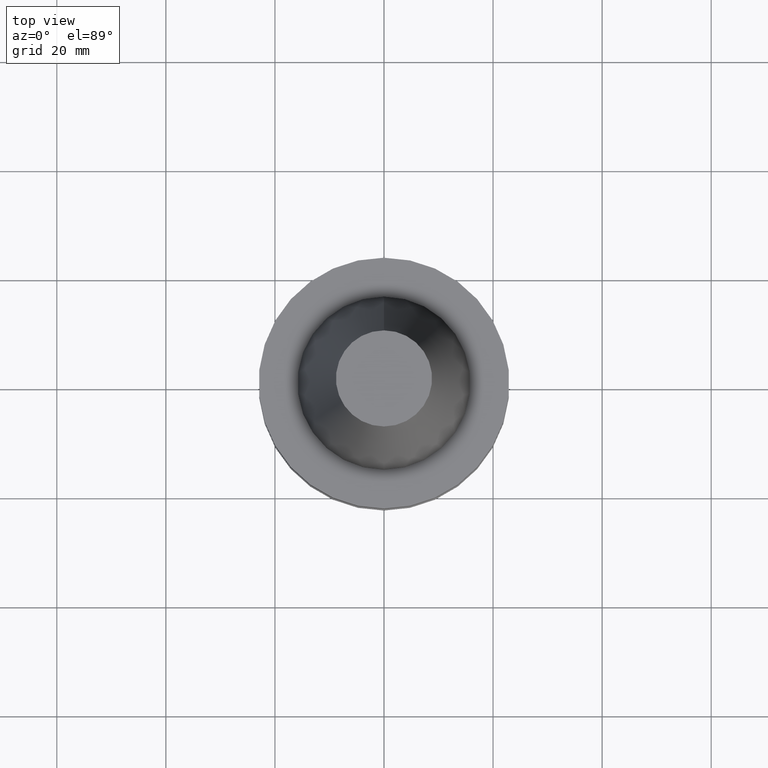
[diagram: clean part render]
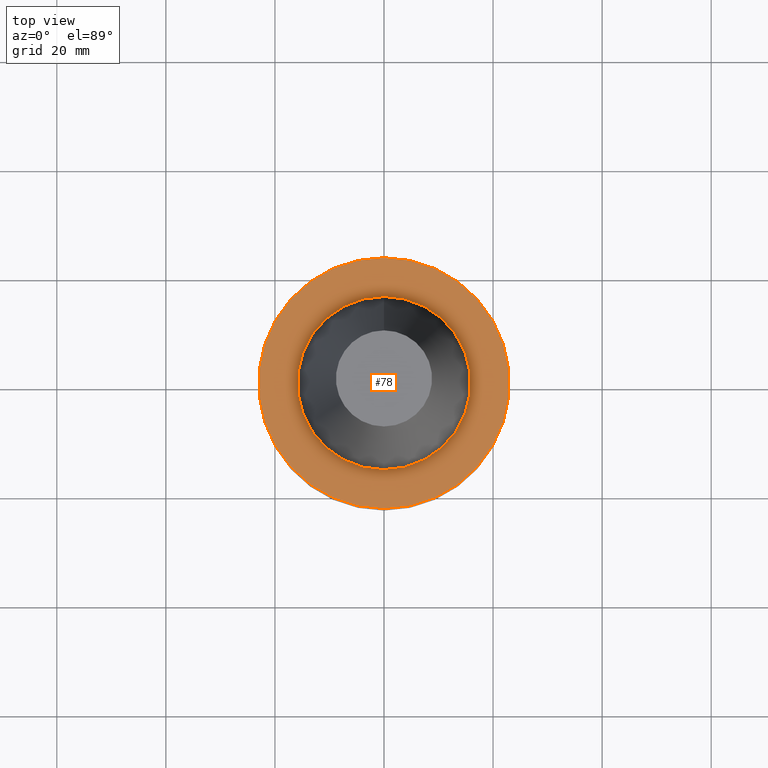
[diagram: same view with one face highlighted and labeled with its STEP entity id]
A machine part, top view. The second image highlights one B-rep face of the part: STEP entity #78.
In plain terms, the highlighted planar face has unit normal (-0, -0, 1).
Its self-contained STEP definition (entity closure, byte-faithful):
#78=ADVANCED_FACE('',(#98,#99),#100,.T.);
#98=FACE_OUTER_BOUND('',#138,.T.);
#99=FACE_BOUND('',#139,.T.);
#100=PLANE('',#140);
#138=EDGE_LOOP('',(#184));
#139=EDGE_LOOP('',(#185));
#140=AXIS2_PLACEMENT_3D('',#186,#187,#188);
#184=ORIENTED_EDGE('',*,*,#241,.F.);
#185=ORIENTED_EDGE('',*,*,#240,.T.);
#186=CARTESIAN_POINT('',(6.12323399573674E-017,19.4375,-0.999999999999998));
#187=DIRECTION('',(-6.12323399573677E-017,-1.22464679914735E-016,1.0));
#188=DIRECTION('',(1.23259516440783E-032,-1.0,-1.22464679914735E-016));
#240=EDGE_CURVE('',#255,#255,#256,.T.);
#241=EDGE_CURVE('',#257,#257,#258,.T.);
#255=VERTEX_POINT('',#281);
#256=CIRCLE('',#282,15.875);
#257=VERTEX_POINT('',#283);
#258=CIRCLE('',#284,23.0);
#281=CARTESIAN_POINT('',(6.12323399573675E-017,15.875,-0.999999999999998));
#282=AXIS2_PLACEMENT_3D('',#309,#310,#311);
#283=CARTESIAN_POINT('',(6.12323399573674E-017,23.0,-0.999999999999997));
#284=AXIS2_PLACEMENT_3D('',#312,#313,#314);
#309=CARTESIAN_POINT('',(6.12323399573677E-017,1.22464679914735E-016,-1.0));
#310=DIRECTION('',(6.12323399573677E-017,1.22464679914735E-016,-1.0));
#311=DIRECTION('',(-1.23259516440783E-032,1.0,1.22464679914735E-016));
#312=CARTESIAN_POINT('',(6.12323399573677E-017,1.22464679914735E-016,-1.0));
#313=DIRECTION('',(6.12323399573677E-017,1.22464679914735E-016,-1.0));
#314=DIRECTION('',(-1.23259516440783E-032,1.0,1.22464679914735E-016));